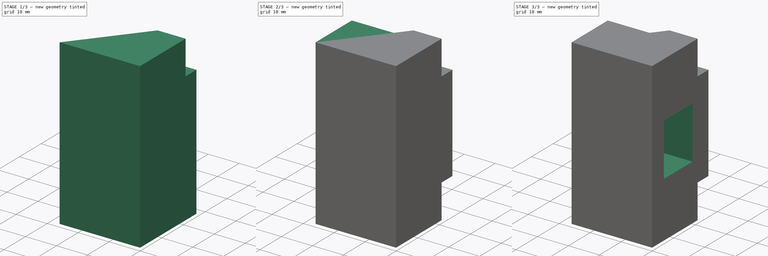
[diagram: build sequence overview — one tinted view per stage of 3, left to right]
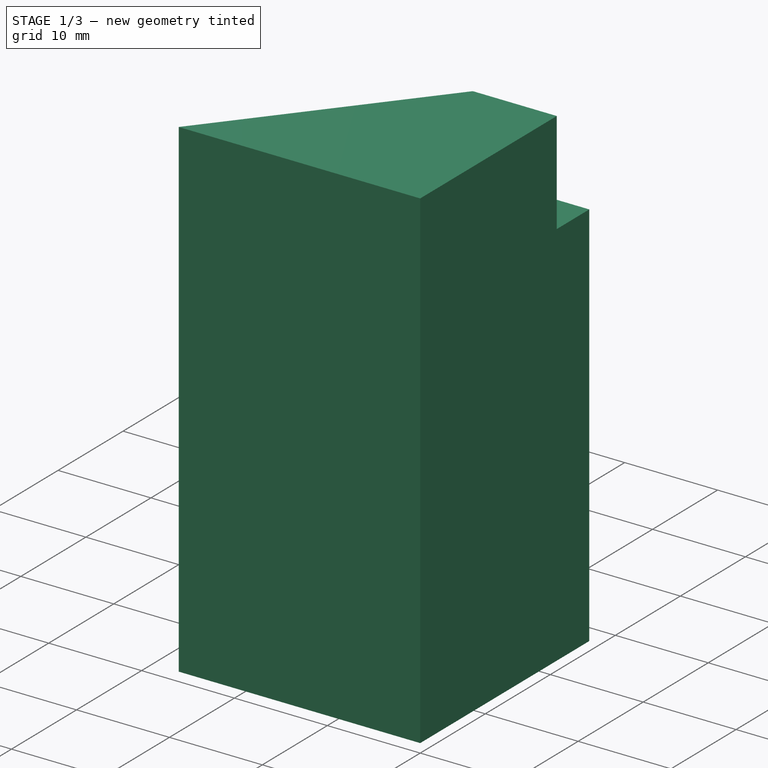
[diagram: stage 1 of 3 — iso view after this stage's code; geometry added in this stage tinted green]
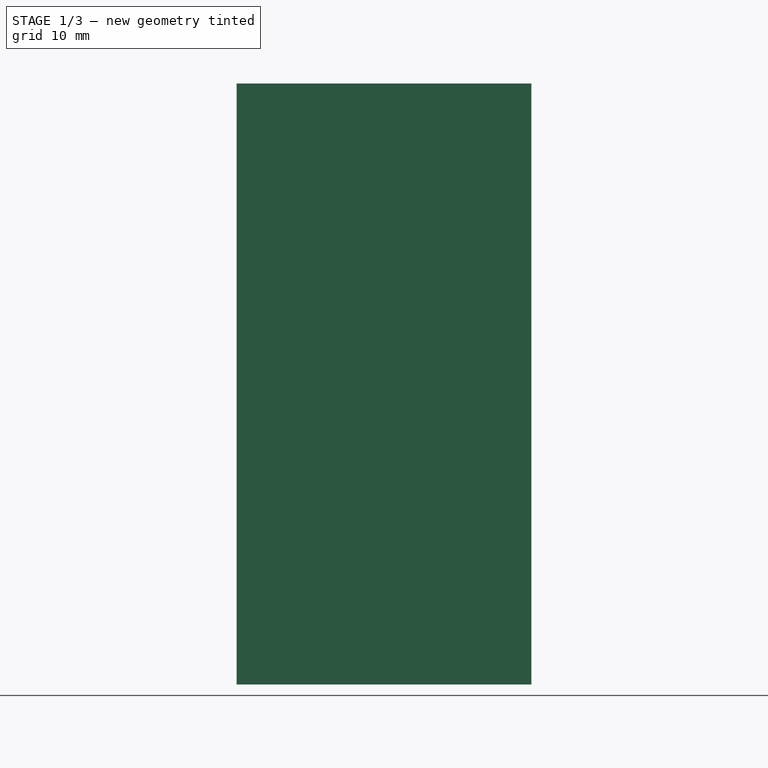
[diagram: stage 1 of 3 — front view after this stage's code; geometry added in this stage tinted green]
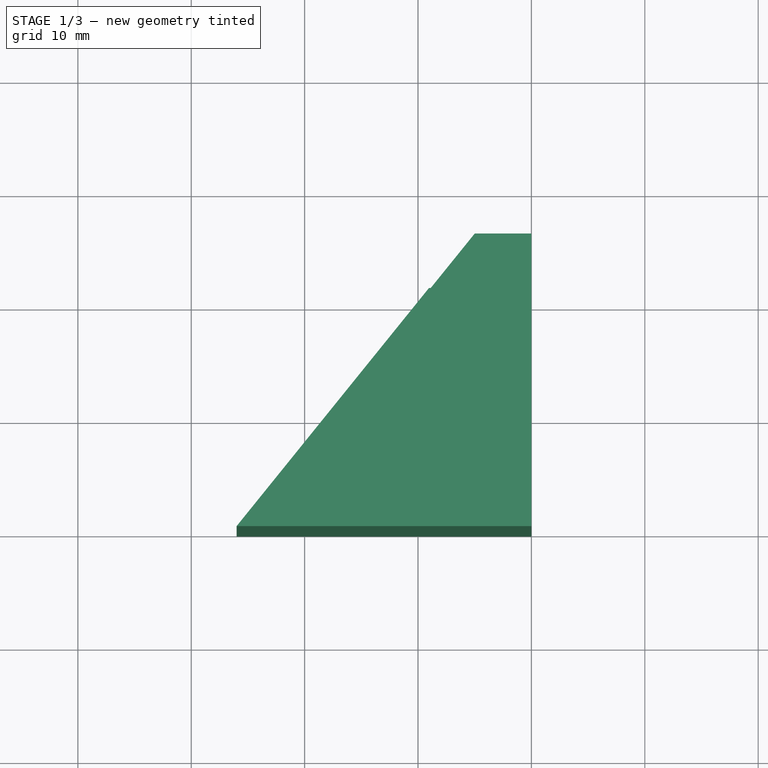
[diagram: stage 1 of 3 — top view after this stage's code; geometry added in this stage tinted green]
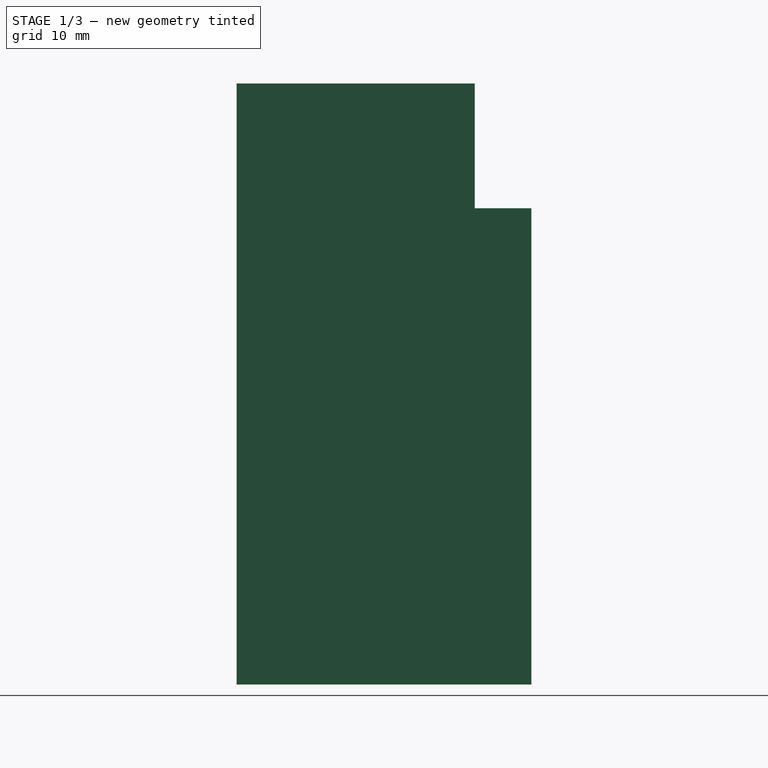
[diagram: stage 1 of 3 — right view after this stage's code; geometry added in this stage tinted green]
FCSTD DOCUMENT  (FreeCAD 0.17RUnknown)
Label: test008_drawing
License: All rights reserved
LicenseURL: http://en.wikipedia.org/wiki/All_rights_reserved
objects: Drawing::FeatureViewPart×8, Sketcher::SketchObject×5, App::DocumentObjectGroup×3, PartDesign::Pad×2, PartDesign::Pocket×2, PartDesign::Mirrored×2, PartDesign::Body×1, Drawing::FeaturePage×1
note: 16 computed .brp shape members not serialized (recipe doc carries the construction recipe); baked Part::Feature solids carry a one-line shape summary decoded from their .brp

FEATURE [App::DocumentObjectGroup] Group001  label="draft_dimensions"
FEATURE [App::DocumentObjectGroup] Group002  label="draft_annotations_text"
FEATURE [Sketcher::SketchObject] Sketch
  MapMode = 5
  Support = -> [XY_Plane]
  sketch-geometry (4):
    g0: LineSegment StartX=-26 StartY=0 StartZ=0 EndX=0 EndY=0 EndZ=0
    g1: LineSegment StartX=0 StartY=0 StartZ=0 EndX=0 EndY=26 EndZ=0
    g2: LineSegment StartX=0 StartY=26 StartZ=0 EndX=-5 EndY=26 EndZ=0
    g3: LineSegment StartX=-5 StartY=26 StartZ=0 EndX=-26 EndY=0 EndZ=0
  constraints (11):
    c: Coincident(g0,g1)
    c: Vertical(g1)
    c: Coincident(g1,g2)
    c: Horizontal(g2)
    c: Coincident(g2,g3)
    c: Coincident(g3,g0)
    c: Horizontal(g0)
    c: DistanceX(g2,g2) = 5
    c: DistanceY(g1,g1) = 26
    c: DistanceX(g0,g0) = 26
    c: Coincident(g0,g-1)
FEATURE [PartDesign::Pad] Pad
  Length = 26.5
  Length2 = 26.5
  Profile = -> Sketch
  Type = 4
FEATURE [Sketcher::SketchObject] Sketch001
  ExternalGeometry = -> [Pad]
  MapMode = 5
  Placement = pos=(0,0,0) rot=(0.57735,0.57735,0.57735;2.0944rad)
  Support = -> [Pad]
  sketch-geometry (4):
    g0: LineSegment StartX=21 StartY=26.5 StartZ=0 EndX=26 EndY=26.5 EndZ=0
    g1: LineSegment StartX=26 StartY=26.5 StartZ=0 EndX=26 EndY=15.5 EndZ=0
    g2: LineSegment StartX=26 StartY=15.5 StartZ=0 EndX=21 EndY=15.5 EndZ=0
    g3: LineSegment StartX=21 StartY=15.5 StartZ=0 EndX=21 EndY=26.5 EndZ=0
  constraints (11):
    c: Coincident(g0,g1)
    c: Coincident(g1,g2)
    c: Coincident(g2,g3)
    c: Coincident(g3,g0)
    c: Horizontal(g0)
    c: Horizontal(g2)
    c: Vertical(g1)
    c: Vertical(g3)
    c: DistanceX(g0,g0) = 5
    c: DistanceY(g3,g3) = 11
    c: Coincident(g-3,g0)
FEATURE [PartDesign::Pocket] Pocket
  BaseFeature = -> Pad
  Length = 5
  Length2 = 100
  Profile = -> Sketch001
  Type = 1
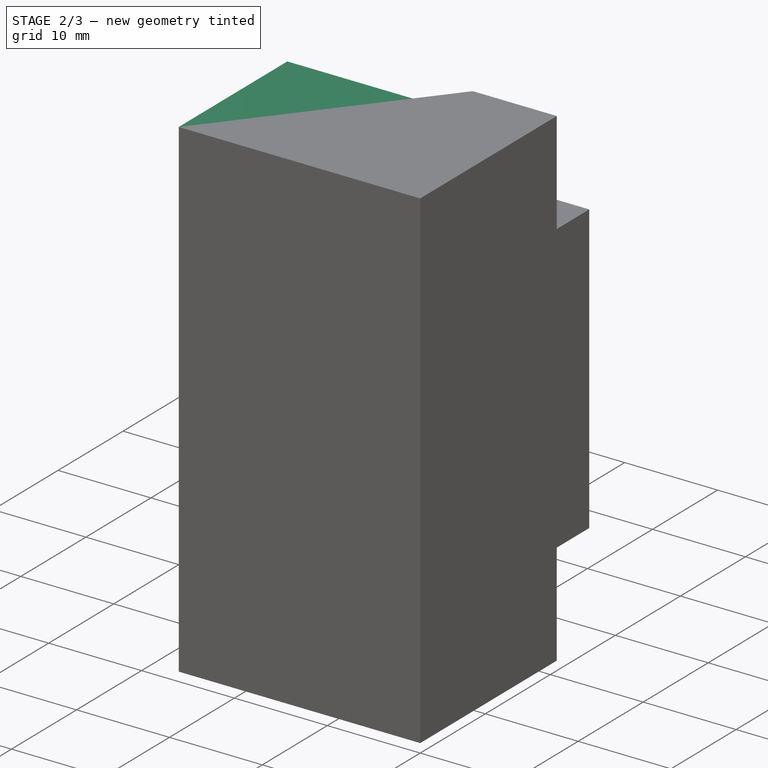
[diagram: stage 2 of 3 — iso view after this stage's code; geometry added in this stage tinted green]
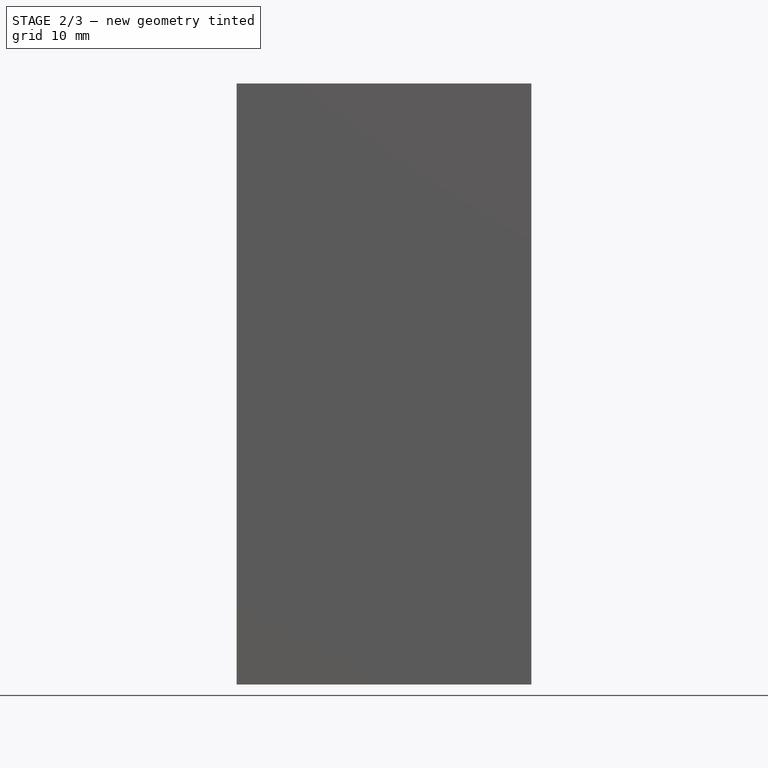
[diagram: stage 2 of 3 — front view after this stage's code; geometry added in this stage tinted green]
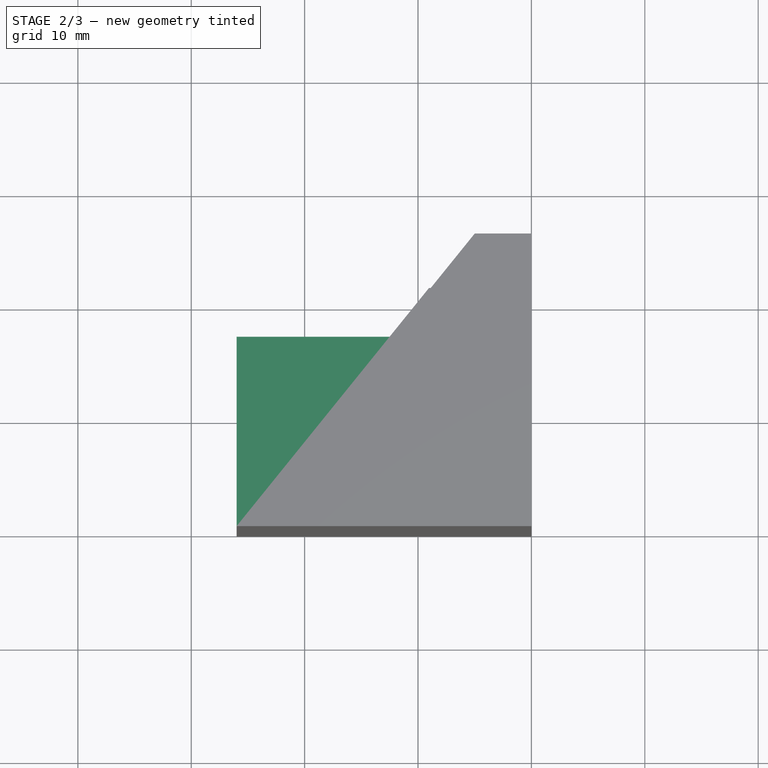
[diagram: stage 2 of 3 — top view after this stage's code; geometry added in this stage tinted green]
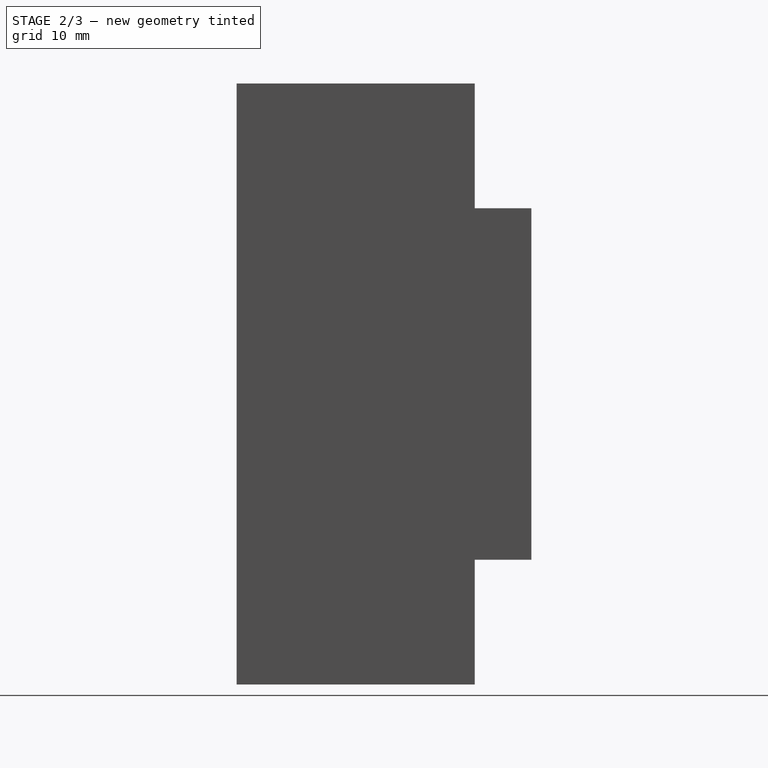
[diagram: stage 2 of 3 — right view after this stage's code; geometry added in this stage tinted green]
FEATURE [PartDesign::Mirrored] Mirrored
  BaseFeature = -> Pocket
  MirrorPlane = -> Sketch001 [H_Axis]
  Originals = -> [Pocket]
FEATURE [Sketcher::SketchObject] Sketch002
  ExternalGeometry = -> [Mirrored]
  MapMode = 5
  Placement = pos=(0,0,0) rot=(0.57735,0.57735,0.57735;2.0944rad)
  Support = -> [Mirrored]
  sketch-geometry (4):
    g0: LineSegment StartX=0 StartY=26.5 StartZ=0 EndX=16.7 EndY=26.5 EndZ=0
    g1: LineSegment StartX=16.7 StartY=26.5 StartZ=0 EndX=16.7 EndY=19.5 EndZ=0
    g2: LineSegment StartX=16.7 StartY=19.5 StartZ=0 EndX=0 EndY=19.5 EndZ=0
    g3: LineSegment StartX=0 StartY=19.5 StartZ=0 EndX=0 EndY=26.5 EndZ=0
  constraints (11):
    c: Coincident(g0,g1)
    c: Coincident(g1,g2)
    c: Coincident(g2,g3)
    c: Coincident(g3,g0)
    c: Horizontal(g0)
    c: Horizontal(g2)
    c: Vertical(g1)
    c: Vertical(g3)
    c: DistanceX(g0,g0) = 16.7
    c: DistanceY(g1,g1) = 7
    c: Coincident(g0,g-3)
FEATURE [PartDesign::Pad] Pad001
  BaseFeature = -> Mirrored
  Length = 26
  Length2 = 100
  Profile = -> Sketch002
  Reversed = true
  Type = 0
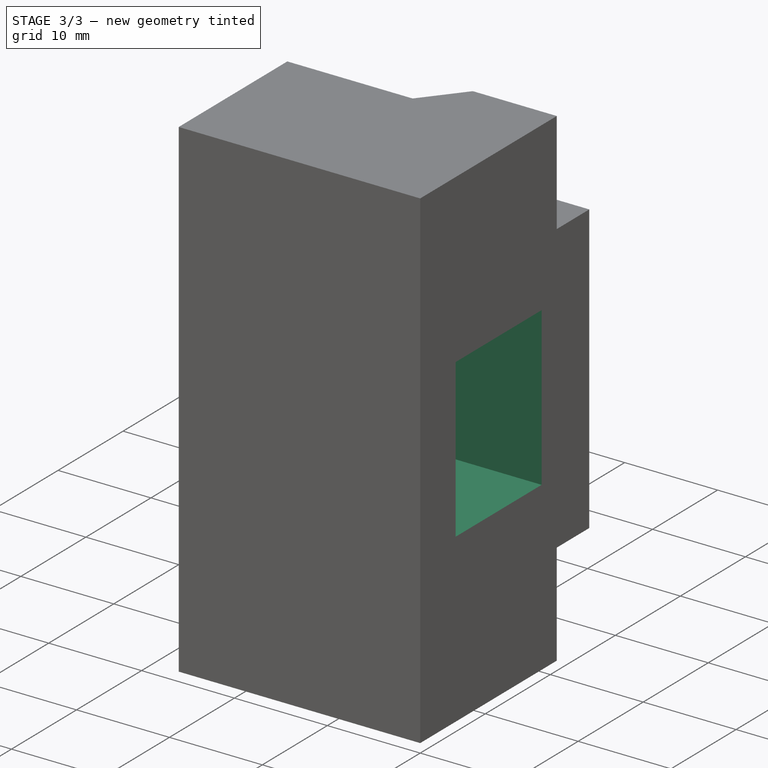
[diagram: stage 3 of 3 — iso view after this stage's code; geometry added in this stage tinted green]
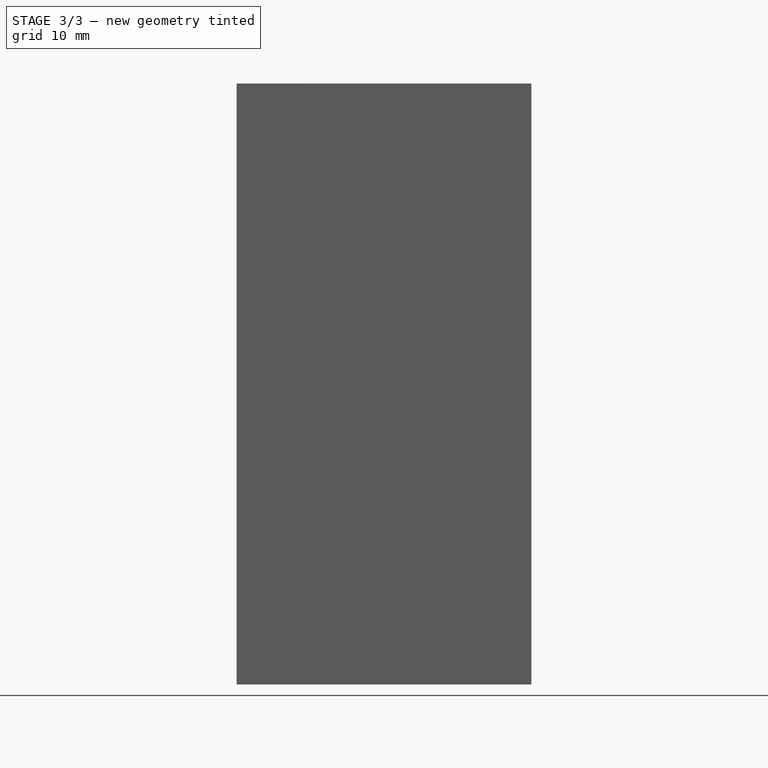
[diagram: stage 3 of 3 — front view after this stage's code; geometry added in this stage tinted green]
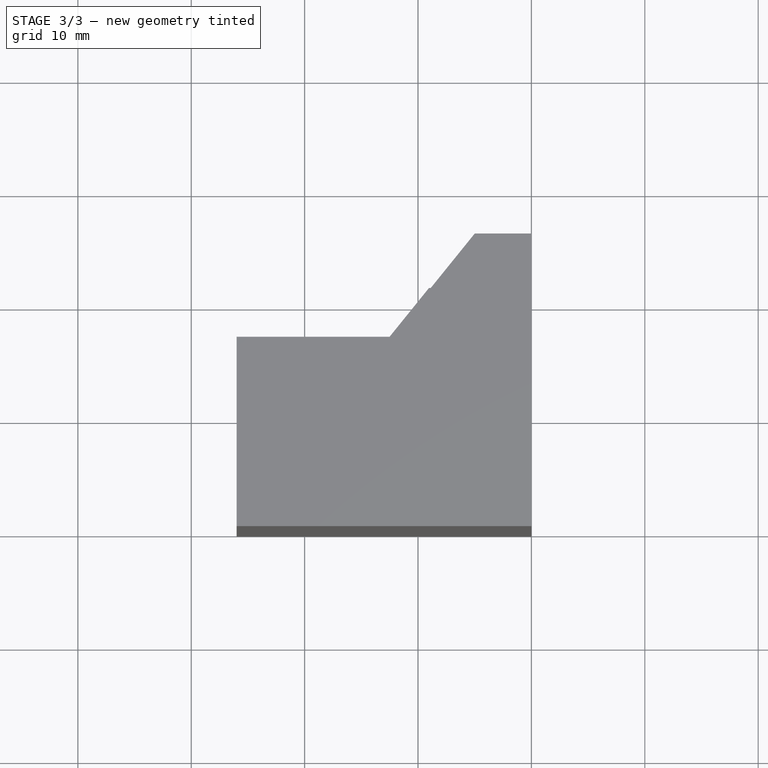
[diagram: stage 3 of 3 — top view after this stage's code; geometry added in this stage tinted green]
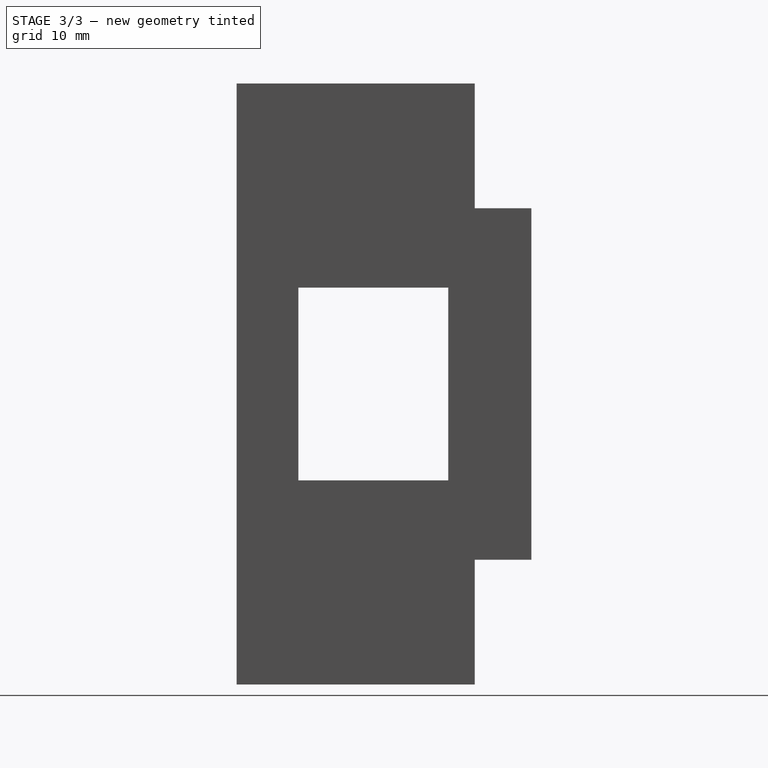
[diagram: stage 3 of 3 — right view after this stage's code; geometry added in this stage tinted green]
FEATURE [PartDesign::Mirrored] Mirrored001
  BaseFeature = -> Pad001
  MirrorPlane = -> Sketch002 [H_Axis]
  Originals = -> [Pad001]
FEATURE [Sketcher::SketchObject] Sketch003
  ExternalGeometry = -> [Mirrored001]
  MapMode = 5
  Placement = pos=(-15.735,12.709,0) rot=(-0.320052,0.669913,0.669913;3.76109rad)
  Support = -> [Mirrored001]
  sketch-geometry (4):
    g0: LineSegment StartX=-7.66324 StartY=8.5 StartZ=0 EndX=9.33676 EndY=8.5 EndZ=0
    g1: LineSegment StartX=9.33676 StartY=8.5 StartZ=0 EndX=9.33676 EndY=-8.5 EndZ=0
    g2: LineSegment StartX=9.33676 StartY=-8.5 StartZ=0 EndX=-7.66324 EndY=-8.5 EndZ=0
    g3: LineSegment StartX=-7.66324 StartY=-8.5 StartZ=0 EndX=-7.66324 EndY=8.5 EndZ=0
  constraints (12):
    c: Coincident(g0,g1)
    c: Coincident(g1,g2)
    c: Coincident(g2,g3)
    c: Coincident(g3,g0)
    c: Horizontal(g0)
    c: Horizontal(g2)
    c: Vertical(g1)
    c: Vertical(g3)
    c: DistanceX(g0,g0) = 17
    c: Equal(g3,g0)
    c: DistanceX(g0,g-3) = 7
    c: DistanceY(g0,g-3) = 11
FEATURE [Sketcher::SketchObject] Sketch004
  ExternalGeometry = -> [Sketch003]
  MapMode = 5
  Placement = pos=(0,0,0) rot=(0.57735,0.57735,0.57735;2.0944rad)
  Support = -> [Mirrored001]
  sketch-geometry (4):
    g0: LineSegment StartX=5.44559 StartY=8.5 StartZ=0 EndX=18.6706 EndY=8.5 EndZ=0
    g1: LineSegment StartX=18.6706 StartY=8.5 StartZ=0 EndX=18.6706 EndY=-8.5 EndZ=0
    g2: LineSegment StartX=18.6706 StartY=-8.5 StartZ=0 EndX=5.44559 EndY=-8.5 EndZ=0
    g3: LineSegment StartX=5.44559 StartY=-8.5 StartZ=0 EndX=5.44559 EndY=8.5 EndZ=0
  constraints (10):
    c: Coincident(g0,g1)
    c: Coincident(g1,g2)
    c: Coincident(g2,g3)
    c: Coincident(g3,g0)
    c: Horizontal(g0)
    c: Horizontal(g2)
    c: Vertical(g1)
    c: Vertical(g3)
    c: Coincident(g0,g-3)
    c: Coincident(g1,g-4)
FEATURE [PartDesign::Pocket] Pocket001
  BaseFeature = -> Mirrored001
  Length = 5
  Length2 = 100
  Profile = -> Sketch004
  Refine = true
  Type = 1
FEATURE [PartDesign::Body] Body
  Group = -> [Sketch,Pad,Sketch001,Pocket,Mirrored,Sketch002,Pad001,Mirrored001,Sketch003,Sketch004,Pocket001]
  Origin = -> Origin
  Tip = -> Pocket001
FEATURE [App::DocumentObjectGroup] Group  label="draft_objects"
  Group = -> [Body]
FEATURE [Drawing::FeatureViewPart] View
  Direction = (0,0,1)
  HiddenWidth = 0.15
  LineWidth = 0.35
  Rotation = 0
  ShowHiddenLines = false
  ShowSmoothLines = false
  Source = -> Body
  Tolerance = 0.05
  ViewResult = <g id="View"\n   transform="rotate(0,10,10) translate(10,10) scale(1,1)"\n  >\n<g   fill="none"\n   stroke="rgb(0, 0, 0)"\n   stroke-linecap="butt"\n   stroke-linejoin="miter"\n   stroke-width="0.350000"\n   transform="scale(1,-1)"\n  >\n<path id= "1" d=" M -5 26 L -9.03846 21 " />\n<path id= "2" d=" M -9.03846 21 L -12.5115 16.7 " />\n<path id= "3" d=" M -10.9199 18.6706 L -12.5115 16.7 " />\n<path id= "4" d=" M 0 26 L -5 26 " />\n<path id= "5" d=" M 0 26 L 0 21 " />\n<path id= "6" d=" M 0 21 L -9.03846 21 " />\n<path id= "7" d=" M -12.5115 16.7 L -26 16.7 " />\n<path id= "8" d=" M -26 -4.4e-16 L -26 16.7 " />\n<path id= "9" d=" M 0 -4.4e-16 L 0 21 " />\n<path id= "10" d=" M -26 -4.4e-16 L 0 -4.4e-16 " />\n</g>\n</g>
  Visible = false
  X = 10
  Y = 10
FEATURE [Drawing::FeatureViewPart] View001
  Direction = (0,0,1)
  HiddenWidth = 0.15
  LineWidth = 0.35
  Rotation = 0
  ShowHiddenLines = false
  ShowSmoothLines = false
  Source = -> Body
  Tolerance = 0.05
  ViewResult = <g id="View001"\n   transform="rotate(0,10,10) translate(10,10) scale(1,1)"\n  >\n<g   fill="none"\n   stroke="rgb(0, 0, 0)"\n   stroke-linecap="butt"\n   stroke-linejoin="miter"\n   stroke-width="0.350000"\n   transform="scale(1,-1)"\n  >\n<path id= "1" d=" M -5 26 L -9.03846 21 " />\n<path id= "2" d=" M -9.03846 21 L -12.5115 16.7 " />\n<path id= "3" d=" M -10.9199 18.6706 L -12.5115 16.7 " />\n<path id= "4" d=" M 0 26 L -5 26 " />\n<path id= "5" d=" M 0 26 L 0 21 " />\n<path id= "6" d=" M 0 21 L -9.03846 21 " />\n<path id= "7" d=" M -12.5115 16.7 L -26 16.7 " />\n<path id= "8" d=" M -26 -4.4e-16 L -26 16.7 " />\n<path id= "9" d=" M 0 -4.4e-16 L 0 21 " />\n<path id= "10" d=" M -26 -4.4e-16 L 0 -4.4e-16 " />\n</g>\n</g>
  Visible = false
  X = 10
  Y = 10
FEATURE [Drawing::FeatureViewPart] View002
  Direction = (0,0,1)
  HiddenWidth = 0.15
  LineWidth = 0.35
  Rotation = 0
  ShowHiddenLines = false
  ShowSmoothLines = false
  Source = -> Body
  Tolerance = 0.05
  ViewResult = <g id="View002"\n   transform="rotate(0,10,10) translate(10,10) scale(1,1)"\n  >\n<g   fill="none"\n   stroke="rgb(0, 0, 0)"\n   stroke-linecap="butt"\n   stroke-linejoin="miter"\n   stroke-width="0.350000"\n   transform="scale(1,-1)"\n  >\n<path id= "1" d=" M -5 26 L -9.03846 21 " />\n<path id= "2" d=" M -9.03846 21 L -12.5115 16.7 " />\n<path id= "3" d=" M -10.9199 18.6706 L -12.5115 16.7 " />\n<path id= "4" d=" M 0 26 L -5 26 " />\n<path id= "5" d=" M 0 26 L 0 21 " />\n<path id= "6" d=" M 0 21 L -9.03846 21 " />\n<path id= "7" d=" M -12.5115 16.7 L -26 16.7 " />\n<path id= "8" d=" M -26 -4.4e-16 L -26 16.7 " />\n<path id= "9" d=" M 0 -4.4e-16 L 0 21 " />\n<path id= "10" d=" M -26 -4.4e-16 L 0 -4.4e-16 " />\n</g>\n</g>
  Visible = false
  X = 10
  Y = 10
FEATURE [Drawing::FeatureViewPart] View003
  Direction = (0,0,1)
  HiddenWidth = 0.15
  LineWidth = 0.35
  Rotation = 0
  ShowHiddenLines = false
  ShowSmoothLines = false
  Source = -> Body
  Tolerance = 0.05
  ViewResult = <g id="View003"\n   transform="rotate(0,10,10) translate(10,10) scale(1,1)"\n  >\n<g   fill="none"\n   stroke="rgb(0, 0, 0)"\n   stroke-linecap="butt"\n   stroke-linejoin="miter"\n   stroke-width="0.350000"\n   transform="scale(1,-1)"\n  >\n<path id= "1" d=" M -5 26 L -9.03846 21 " />\n<path id= "2" d=" M -9.03846 21 L -12.5115 16.7 " />\n<path id= "3" d=" M -10.9199 18.6706 L -12.5115 16.7 " />\n<path id= "4" d=" M 0 26 L -5 26 " />\n<path id= "5" d=" M 0 26 L 0 21 " />\n<path id= "6" d=" M 0 21 L -9.03846 21 " />\n<path id= "7" d=" M -12.5115 16.7 L -26 16.7 " />\n<path id= "8" d=" M -26 -4.4e-16 L -26 16.7 " />\n<path id= "9" d=" M 0 -4.4e-16 L 0 21 " />\n<path id= "10" d=" M -26 -4.4e-16 L 0 -4.4e-16 " />\n</g>\n</g>
  Visible = false
  X = 10
  Y = 10
FEATURE [Drawing::FeatureViewPart] Ortho  label="Ortho_0_0"
  Direction = (-1,0,0)
  HiddenWidth = 0.15
  LineWidth = 0.35
  Rotation = 180
  Scale = 1.5
  ShowHiddenLines = false
  ShowSmoothLines = false
  Source = -> Body
  Tolerance = 0.05
  ViewResult = <g id="Ortho_0_0"\n   transform="rotate(180,102.583,131.333) translate(102.583,131.333) scale(1.5,1.5)"\n  >\n<g   fill="none"\n   stroke="rgb(0, 0, 0)"\n   stroke-linecap="butt"\n   stroke-linejoin="miter"\n   stroke-width="0.233333"\n   transform="scale(1,-1)"\n  >\n<path id= "1" d=" M 15.5 -21 L 26.5 -21 " />\n<path id= "2" d=" M 26.5 -21 L 26.5 -16.7 " />\n<path id= "3" d=" M 15.5 -26 L 15.5 -21 " />\n<path id= "4" d=" M 15.5 -26 L -15.5 -26 " />\n<path id= "5" d=" M 19.5 2.2e-16 L -19.5 2.2e-16 " />\n<path id= "6" d=" M -15.5 -26 L -15.5 -21 " />\n<path id= "7" d=" M -15.5 -21 L -26.5 -21 " />\n<path id= "8" d=" M -26.5 -21 L -26.5 -16.7 " />\n<path id= "9" d=" M 8.5 -5.44559 L -8.5 -5.44559 " />\n<path id= "10" d=" M 8.5 -18.6706 L 8.5 -5.44559 " />\n<path id= "11" d=" M -8.5 -18.6706 L 8.5 -18.6706 " />\n<path id= "12" d=" M -8.5 -5.44559 L -8.5 -18.6706 " />\n<path id= "13" d=" M 26.5 -16.7 L 19.5 -16.7 " />\n<path id= "14" d=" M 19.5 -16.7 L 19.5 0 " />\n<path id= "15" d=" M -19.5 -16.7 L -19.5 0 " />\n<path id= "16" d=" M -26.5 -16.7 L -19.5 -16.7 " />\n<path id= "17" d=" M 26.5 4.4e-16 L 26.5 -16.7 " />\n<path id= "18" d=" M 26.5 2.2e-16 L 19.5 2.2e-16 " />\n<path id= "19" d=" M -26.5 4.4e-16 L -26.5 -16.7 " />\n<path id= "20" d=" M -19.5 2.2e-16 L -26.5 2.2e-16 " />\n</g>\n</g>
  Visible = false
  X = 102.583
  Y = 131.333
FEATURE [Drawing::FeatureViewPart] Ortho001  label="Ortho_1_1"
  Direction = (-0.57735,0.57735,0.57735)
  HiddenWidth = 0.15
  LineWidth = 0.35
  Rotation = 0
  Scale = 1.5
  ShowHiddenLines = false
  ShowSmoothLines = false
  Source = -> Body
  Tolerance = 0.05
  ViewResult = <blob: 2801 chars omitted>
  Visible = false
  X = 228.455
  Y = 59.1275
FEATURE [Drawing::FeatureViewPart] Ortho003  label="Ortho_0_1"
  Direction = (0,1,0)
  HiddenWidth = 0.15
  LineWidth = 0.35
  Rotation = 0
  Scale = 1.5
  ShowHiddenLines = false
  ShowSmoothLines = false
  Source = -> Body
  Tolerance = 0.05
  ViewResult = <g id="Ortho_0_1"\n   transform="rotate(0,102.583,31.6667) translate(102.583,31.6667) scale(1.5,1.5)"\n  >\n<g   fill="none"\n   stroke="rgb(0, 0, 0)"\n   stroke-linecap="butt"\n   stroke-linejoin="miter"\n   stroke-width="0.233333"\n   transform="scale(1,-1)"\n  >\n<path id= "1" d=" M -15.5 0 L -26.5 0 " />\n<path id= "2" d=" M -26.5 0 L -26.5 -9.03846 " />\n<path id= "3" d=" M -15.5 -9.03846 L -26.5 -9.03846 " />\n<path id= "4" d=" M -26.5 -9.03846 L -26.5 -12.5115 " />\n<path id= "5" d=" M -26.5 -12.5115 L -19.5 -12.5115 " />\n<path id= "6" d=" M -15.5 -5 L -15.5 -9.03846 " />\n<path id= "7" d=" M -15.5 -5 L 15.5 -5 " />\n<path id= "8" d=" M -19.5 -26 L 19.5 -26 " />\n<path id= "9" d=" M 15.5 -5 L 15.5 -9.03846 " />\n<path id= "10" d=" M 15.5 -9.03846 L 26.5 -9.03846 " />\n<path id= "11" d=" M 26.5 -12.5115 L 19.5 -12.5115 " />\n<path id= "12" d=" M 26.5 -9.03846 L 26.5 -12.5115 " />\n<path id= "13" d=" M -8.5 -21.6016 L 8.5 -21.6016 " />\n<path id= "14" d=" M -8.5 -10.9199 L -8.5 -21.6016 " />\n<path id= "15" d=" M 8.5 -10.9199 L -8.5 -10.9199 " />\n<path id= "16" d=" M 8.5 -21.6016 L 8.5 -10.9199 " />\n<path id= "17" d=" M -15.5 0 L -15.5 -5 " />\n<path id= "18" d=" M 15.5 0 L 15.5 -5 " />\n<path id= "19" d=" M -15.5 0 L 15.5 0 " />\n<path id= "20" d=" M 15.5 0 L 26.5 0 " />\n<path id= "21" d=" M 26.5 0 L 26.5 -9.03846 " />\n<path id= "22" d=" M 8.5 -10.9199 L 8.5 -21.6016 " />\n<path id= "23" d=" M -8.5 -10.9199 L -8.5 -21.6016 " />\n<path id= "24" d=" M -19.5 -12.5115 L -19.5 -26 " />\n<path id= "25" d=" M -26.5 -26 L -19.5 -26 " />\n<path id= "26" d=" M -26.5 -12.5115 L -26.5 -26 " />\n<path id= "27" d=" M 19.5 -12.5115 L 19.5 -26 " />\n<path id= "28" d=" M 26.5 -26 L 19.5 -26 " />\n<path id= "29" d=" M 26.5 -12.5115 L 26.5 -26 " />\n</g>\n</g>
  Visible = false
  X = 102.583
  Y = 31.6667
FEATURE [Drawing::FeatureViewPart] Ortho004  label="Ortho_1_0"
  Direction = (0,0,1)
  HiddenWidth = 0.15
  LineWidth = 0.35
  Rotation = 0
  Scale = 1.5
  ShowHiddenLines = false
  ShowSmoothLines = false
  Source = -> Body
  Tolerance = 0.05
  ViewResult = <g id="Ortho_1_0"\n   transform="rotate(-6.36111e-15,234.167,131.333) translate(234.167,131.333) scale(1.5,1.5)"\n  >\n<g   fill="none"\n   stroke="rgb(0, 0, 0)"\n   stroke-linecap="butt"\n   stroke-linejoin="miter"\n   stroke-width="0.233333"\n   transform="scale(1,-1)"\n  >\n<path id= "1" d=" M -5 26 L -9.03846 21 " />\n<path id= "2" d=" M -9.03846 21 L -12.5115 16.7 " />\n<path id= "3" d=" M -10.9199 18.6706 L -12.5115 16.7 " />\n<path id= "4" d=" M 0 26 L -5 26 " />\n<path id= "5" d=" M 0 26 L 0 21 " />\n<path id= "6" d=" M 0 21 L -9.03846 21 " />\n<path id= "7" d=" M -12.5115 16.7 L -26 16.7 " />\n<path id= "8" d=" M -26 -4.4e-16 L -26 16.7 " />\n<path id= "9" d=" M 0 -4.4e-16 L 0 21 " />\n<path id= "10" d=" M -26 -4.4e-16 L 0 -4.4e-16 " />\n</g>\n</g>
  Visible = false
  X = 234.167
  Y = 131.333
FEATURE [Drawing::FeaturePage] Page
  EditableTexts = Designed by Name | Date | Scale | Weight | Title | Subtitle | Drawing number | Sheet
  Group = -> [View,View001,View002,View003,Ortho,Ortho001,Ortho003,Ortho004]
  Template = <path>
note: 1 file-system path scrubbed to <path> (originals preserved in the JSON sidecar)
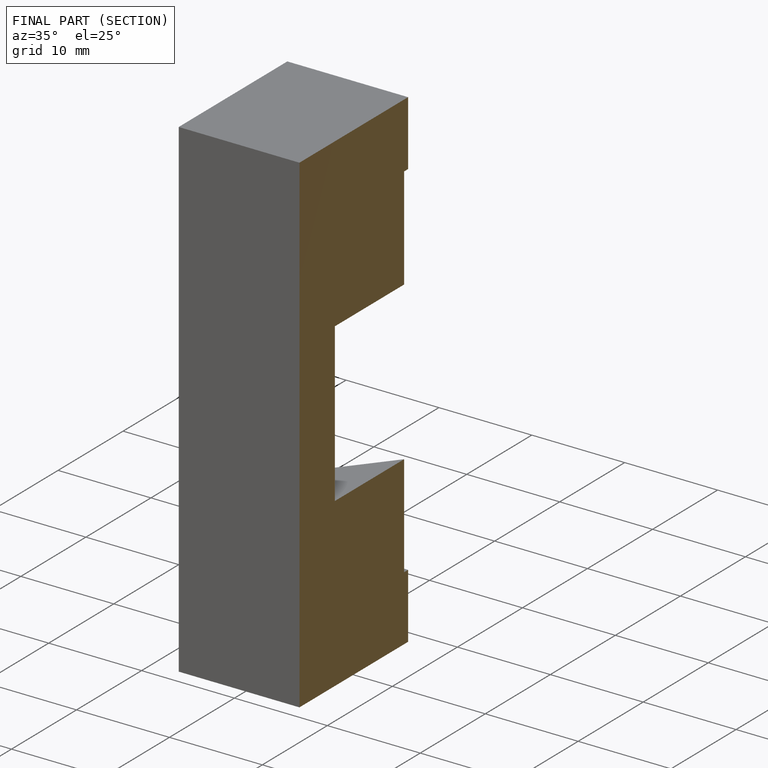
[diagram: finished part — half-section view (interior)]
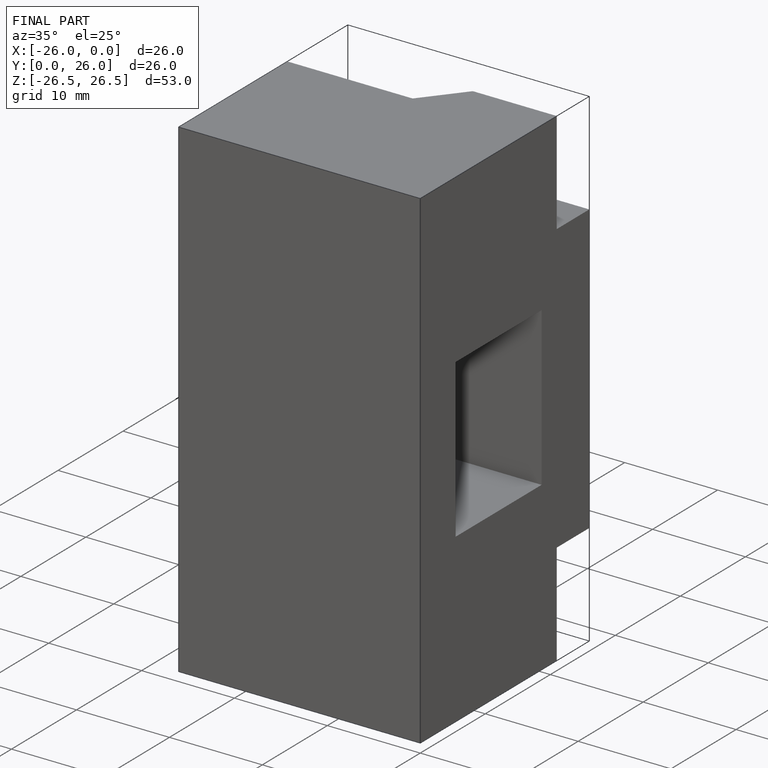
[diagram: finished part — iso view with bounding-box wireframe]
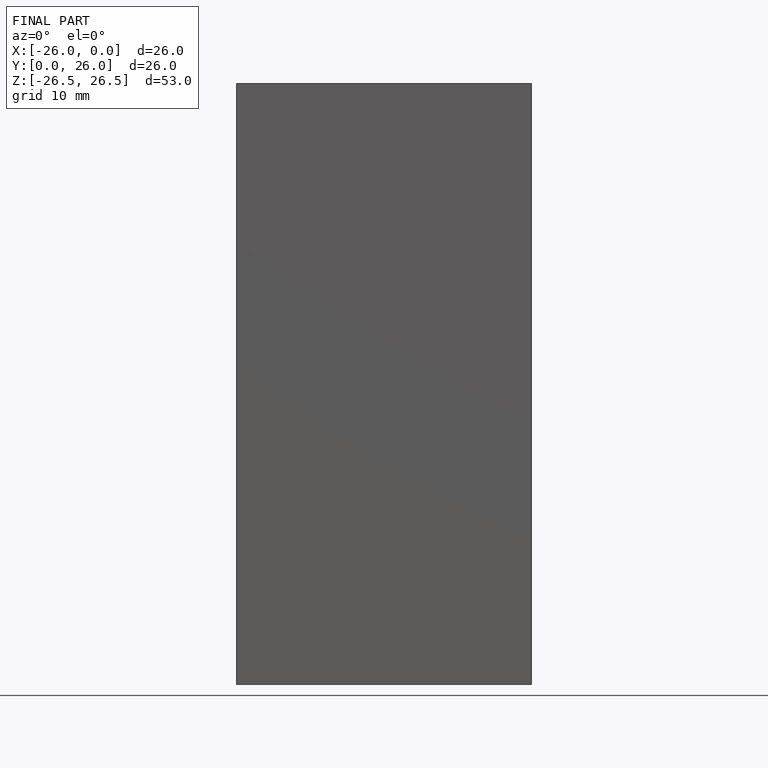
[diagram: finished part — front view with bounding-box wireframe]
